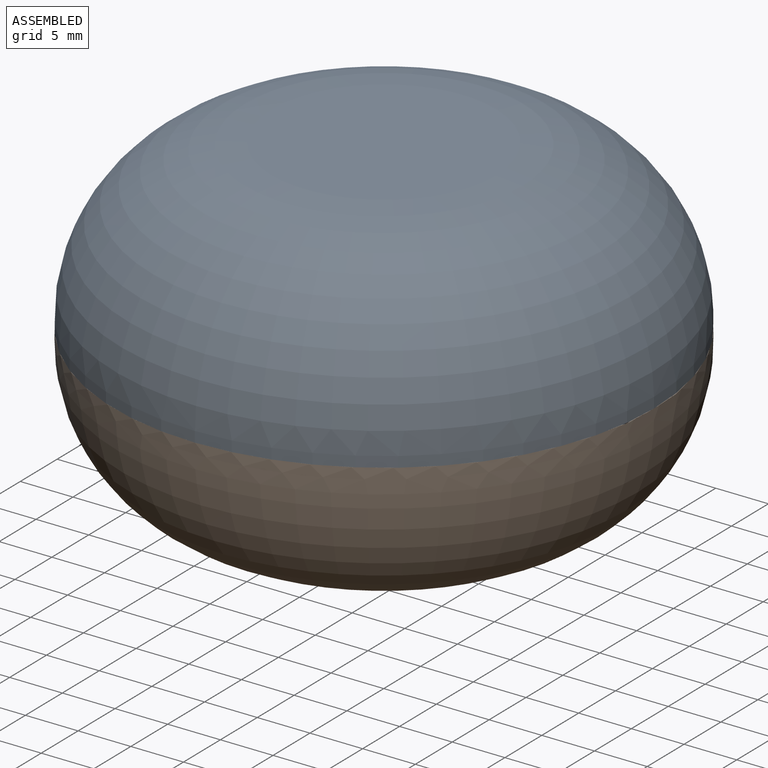
[diagram: assembled view]
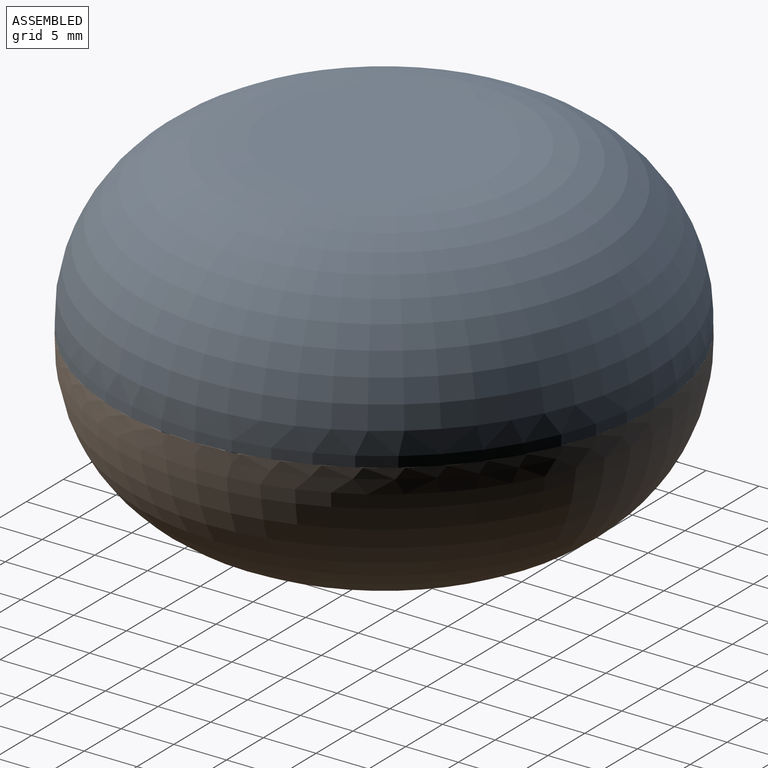
[diagram: assembled view, second angle]
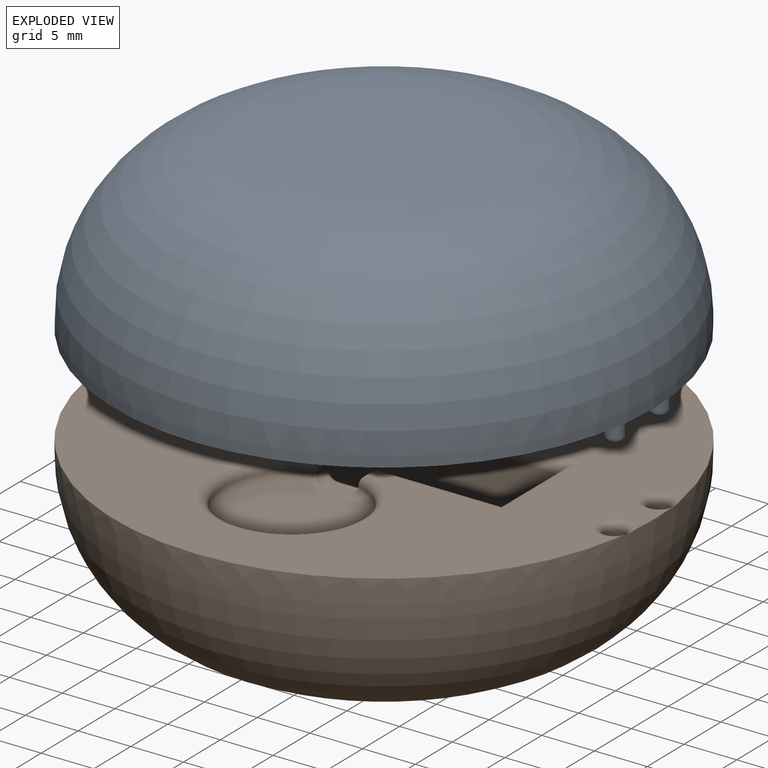
[diagram: exploded view]
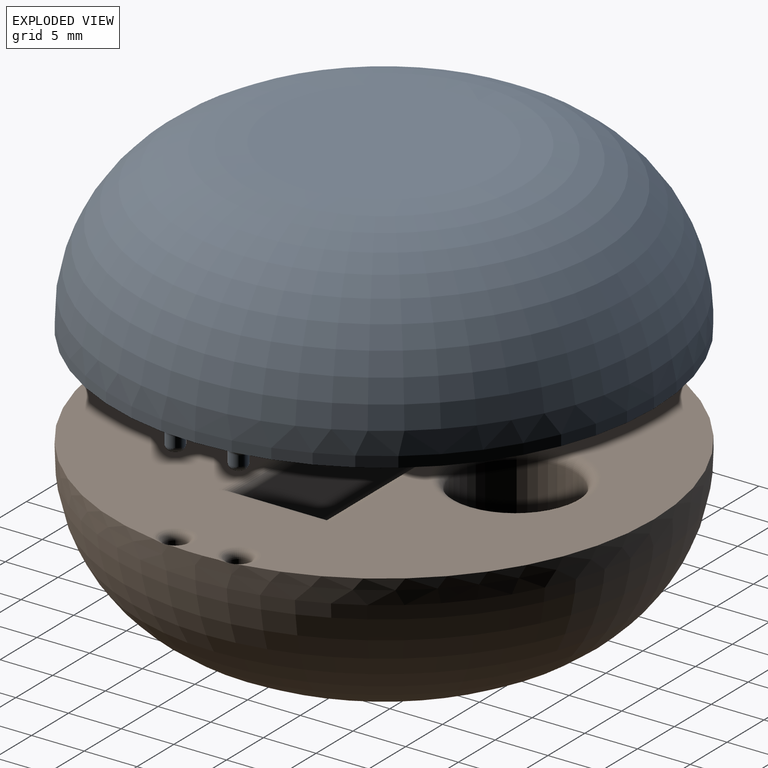
[diagram: exploded view, second angle]
ASSEMBLY  parts=2 mates=3
PART A: 340 faces, bbox 52x51.5x18.3 mm
  f0: plane 21.25x19.8mm, normal (0,0,-1), area 244.3mm2, adj f2,f3,f140,f143,f151,f152,f153,f154
  f1: plane 16.11x5.54mm, normal (0,1,0), area 74.7mm2, adj f2,f5,f13,f14
  f2: torus R=10.62mm, axis (0,0,1), area 362.2mm2, adj f0,f1,f13,f14,f139,f142
  f3: torus R=10.62mm, axis (0,0,1), area 362.2mm2, adj f0,f4,f11,f12,f141,f144
  f4: plane 16.11x5.54mm, normal (0,-1,0), area 74.7mm2, adj f3,f5,f11,f12
  f5: plane 51.25x51.25mm, normal (0,0,-1), area 1102.7mm2, adj f1,f4,f6,f9,f10,f11,f12,f13
  f6: cylinder r=25.62mm len=51.25mm, axis (0,0,-1), area 161mm2, adj f5,f8
  f7: plane 21.25x21.25mm, normal (0,0,1), area 354.7mm2, adj f8
  f8: torus R=10.62mm, axis (0,0,1), area 2986.7mm2, adj f6,f7
  f9: plane 43.93x12.9mm, normal (-1,0,0), area 492mm2, adj f5,f11,f13,f139,f140,f141
  f10: plane 43.93x12.9mm, normal (1,0,0), area 492mm2, adj f5,f12,f14,f142,f143,f144
  f11: plane 4.78x2.23mm, normal (-0.64,-0.77,0), area 9.3mm2, adj f3,f4,f5,f9,f141
  f12: plane 4.78x2.23mm, normal (0.64,-0.77,0), area 9.3mm2, adj f3,f4,f5,f10,f144
  f13: plane 4.78x2.23mm, normal (-0.64,0.77,0), area 9.3mm2, adj f1,f2,f5,f9,f139
  f14: plane 4.78x2.23mm, normal (0.64,0.77,0), area 9.3mm2, adj f1,f2,f5,f10,f142
  f15: plane 2.8x0.8mm, normal (0,-1,0), area 2.2mm2, adj f16,f26,f240,f338
  f16: plane 0.85x0.8mm, normal (-1,0,0), area 0.7mm2, adj f15,f17,f241,f339
  f17: plane 1.77x0.8mm, normal (0,1,0), area 1.4mm2, adj f16,f18,f239,f337
  f18: plane 1.26x0.8mm, normal (-1,0,0), area 1mm2, adj f17,f19,f237,f335
  f19: plane 1.65x0.8mm, normal (0,-1,0), area 1.3mm2, adj f18,f20,f235,f333
  f20: plane 0.85x0.8mm, normal (-1,0,0), area 0.7mm2, adj f19,f21,f233,f331
  f21: plane 1.65x0.8mm, normal (0,1,0), area 1.3mm2, adj f20,f22,f231,f329
  f22: plane 1.07x0.8mm, normal (-1,0,0), area 0.9mm2, adj f21,f23,f230,f328
  f23: plane 1.77x0.8mm, normal (0,-1,0), area 1.4mm2, adj f22,f24,f232,f330
  f24: plane 0.85x0.8mm, normal (-1,0,0), area 0.7mm2, adj f23,f25,f234,f332
  f25: plane 2.8x0.8mm, normal (0,1,0), area 2.2mm2, adj f24,f26,f236,f334
  f26: plane 4.87x0.8mm, normal (1,0,0), area 3.9mm2, adj f15,f25,f238,f336
  f27: plane 4.67x2.6mm, normal (0,0,-1), area 7.2mm2, adj f328,f329,f330,f331,f332,f333,f334,f335
  f28: plane 1.28x0.8mm, normal (-1,0,0), area 1mm2, adj f29,f52,f146,f265
  f29: plane 0.8x0.64mm, normal (0,-1,0), area 0.5mm2, adj f28,f30,f145,f266
  f30: extruded ~0.87x0.8mm, area 1mm2, adj f29,f31,f147,f264
  f31: extruded ~0.8x0.5mm, area 0.5mm2, adj f30,f32,f149,f262
  f32: extruded ~0.8x0.63mm, area 0.5mm2, adj f31,f52,f150,f261
  f33: plane 0.8x0.6mm, normal (0,1,0), area 0.5mm2, adj f34,f50,f168,f260
  f34: plane 1.09x0.8mm, normal (-1,0,0), area 0.9mm2, adj f33,f35,f166,f258
  f35: plane 0.8x0.55mm, normal (0,-1,0), area 0.4mm2, adj f34,f36,f164,f256
  f36: extruded ~0.8x0.65mm, area 0.5mm2, adj f35,f37,f162,f254
  f37: extruded ~0.8x0.4mm, area 0.4mm2, adj f36,f38,f163,f255
  f38: extruded ~0.8x0.43mm, area 0.4mm2, adj f37,f50,f165,f257
  f39: plane 1.53x0.8mm, normal (0,1,0), area 1.2mm2, adj f40,f51,f160,f252
  f40: plane 4.9x0.8mm, normal (1,0,0), area 3.9mm2, adj f39,f41,f161,f253
  f41: plane 1.83x0.8mm, normal (0,-1,0), area 1.5mm2, adj f40,f42,f159,f251
  f42: extruded ~1.32x0.8mm, area 1.1mm2, adj f41,f43,f157,f249
  f43: extruded ~1.05x0.8mm, area 1mm2, adj f42,f44,f155,f247
  f44: extruded ~0.8x0.76mm, area 0.6mm2, adj f43,f45,f153,f245
  f45: extruded ~0.8x0.67mm, area 0.6mm2, adj f44,f46,f151,f243
  f46: plane 0.9x0.07mm, normal (-1,0,0), area 0mm2, adj f45,f47,f151,f152,f242
  f47: extruded ~0.8x0.55mm, area 0.5mm2, adj f46,f48,f152,f244
  f48: extruded ~0.8x0.72mm, area 0.6mm2, adj f47,f49,f154,f246
  f49: extruded ~0.94x0.8mm, area 0.9mm2, adj f48,f51,f156,f248
  f50: extruded ~0.8x0.61mm, area 0.5mm2, adj f33,f38,f167,f259
  f51: extruded ~1.51x0.8mm, area 1.2mm2, adj f39,f49,f158,f250
  f52: plane 0.8x0.68mm, normal (0,1,0), area 0.5mm2, adj f28,f32,f148,f263
  f53: plane 4.7x3.44mm, normal (0,0,-1), area 10.5mm2, adj f242,f243,f244,f245,f246,f247,f248,f249
  f54: plane 1.2x0.89mm, normal (0,0,-1), area 1mm2, adj f162,f163,f164,f165,f166,f167,f168
  f55: extruded ~1.58x1.4mm, area 1.9mm2, adj f56,f66,f169,f277
  f56: extruded ~1.61x1.5mm, area 2mm2, adj f55,f57,f170,f278
  f57: plane 0.8x0.45mm, normal (0,1,0), area 0.4mm2, adj f56,f58,f172,f276
  f58: plane 3.19x0.8mm, normal (-1,0,0), area 2.6mm2, adj f57,f66,f173,f274
  f59: extruded ~1.85x0.8mm, area 1.6mm2, adj f60,f65,f179,f272
  f60: extruded ~1.77x0.8mm, area 1.6mm2, adj f59,f61,f180,f273
  f61: extruded ~1.87x0.8mm, area 1.6mm2, adj f60,f62,f178,f271
  f62: plane 1.54x0.8mm, normal (0,1,0), area 1.2mm2, adj f61,f63,f176,f269
  f63: plane 4.9x0.8mm, normal (1,0,0), area 3.9mm2, adj f62,f64,f174,f267
  f64: plane 1.39x0.8mm, normal (0,-1,0), area 1.1mm2, adj f63,f65,f175,f268
  f65: extruded ~1.99x0.8mm, area 1.7mm2, adj f59,f64,f177,f270
  f66: plane 0.8x0.55mm, normal (0,-1,0), area 0.4mm2, adj f55,f58,f171,f275
  f67: plane 4.7x3.87mm, normal (0,0,-1), area 9.7mm2, adj f267,f268,f269,f270,f271,f272,f273,f274
  f68: plane 3.62x0.8mm, normal (0,-1,0), area 2.9mm2, adj f69,f77,f225,f323
  f69: plane 0.85x0.8mm, normal (-1,0,0), area 0.7mm2, adj f68,f70,f223,f321
  f70: plane 2.39x0.8mm, normal (0,1,0), area 1.9mm2, adj f69,f71,f221,f319
  f71: plane 3.35x2.33mm, normal (-0.82,-0.57,0), area 3.3mm2, adj f70,f72,f220,f318
  f72: plane 0.8x0.67mm, normal (-1,0,0), area 0.5mm2, adj f71,f73,f222,f320
  f73: plane 3.5x0.8mm, normal (0,1,0), area 2.8mm2, adj f72,f74,f224,f322
  f74: plane 0.85x0.8mm, normal (1,0,0), area 0.7mm2, adj f73,f75,f226,f324
  f75: plane 2.27x0.8mm, normal (0,-1,0), area 1.8mm2, adj f74,f76,f228,f326
  f76: plane 3.35x2.33mm, normal (0.82,0.57,0), area 3.3mm2, adj f75,f77,f229,f327
  f77: plane 0.8x0.67mm, normal (1,0,0), area 0.5mm2, adj f68,f76,f227,f325
  f78: plane 4.67x3.42mm, normal (0,0,-1), area 7.2mm2, adj f318,f319,f320,f321,f322,f323,f324,f325
  f79: plane 1.03x0.8mm, normal (0,-1,0), area 0.8mm2, adj f80,f90,f218,f316
  f80: plane 4.87x0.8mm, normal (-1,0,0), area 3.9mm2, adj f79,f81,f219,f317
  f81: plane 1.03x0.8mm, normal (0,1,0), area 0.8mm2, adj f80,f82,f217,f315
  f82: plane 1.91x0.8mm, normal (1,0,0), area 1.5mm2, adj f81,f83,f215,f313
  f83: plane 1.93x0.8mm, normal (0,1,0), area 1.5mm2, adj f82,f84,f213,f311
  f84: plane 1.91x0.8mm, normal (-1,0,0), area 1.5mm2, adj f83,f85,f211,f309
  f85: plane 1.03x0.8mm, normal (0,1,0), area 0.8mm2, adj f84,f86,f209,f307
  f86: plane 4.87x0.8mm, normal (1,0,0), area 3.9mm2, adj f85,f87,f208,f306
  f87: plane 1.03x0.8mm, normal (0,-1,0), area 0.8mm2, adj f86,f88,f210,f308
  f88: plane 2.1x0.8mm, normal (-1,0,0), area 1.7mm2, adj f87,f89,f212,f310
  f89: plane 1.93x0.8mm, normal (0,-1,0), area 1.5mm2, adj f88,f90,f214,f312
  f90: plane 2.1x0.8mm, normal (1,0,0), area 1.7mm2, adj f79,f89,f216,f314
  f91: plane 4.67x3.79mm, normal (0,0,-1), area 9.2mm2, adj f306,f307,f308,f309,f310,f311,f312,f313
  f92: plane 3.15x0.8mm, normal (-1,0,0), area 2.5mm2, adj f93,f106,f206,f304
  f93: plane 1.03x0.8mm, normal (0,1,0), area 0.8mm2, adj f92,f94,f207,f305
  f94: plane 2.97x0.8mm, normal (1,0,0), area 2.4mm2, adj f93,f95,f205,f303
  f95: extruded ~0.83x0.8mm, area 0.7mm2, adj f94,f96,f203,f301
  f96: extruded ~0.8x0.73mm, area 0.6mm2, adj f95,f97,f201,f299
  f97: extruded ~0.8x0.75mm, area 0.7mm2, adj f96,f98,f199,f297
  f98: extruded ~0.83x0.8mm, area 0.7mm2, adj f97,f99,f197,f295
  f99: plane 2.98x0.8mm, normal (-1,0,0), area 2.4mm2, adj f98,f100,f195,f293
  f100: plane 1.03x0.8mm, normal (0,1,0), area 0.8mm2, adj f99,f101,f193,f291
  f101: plane 3.14x0.8mm, normal (1,0,0), area 2.5mm2, adj f100,f102,f194,f292
  f102: extruded ~1.32x0.8mm, area 1.2mm2, adj f101,f103,f196,f294
  f103: extruded ~1.46x0.8mm, area 1.3mm2, adj f102,f104,f198,f296
  f104: extruded ~1.08x0.8mm, area 0.9mm2, adj f103,f105,f200,f298
  f105: extruded ~0.8x0.7mm, area 0.8mm2, adj f104,f106,f202,f300
  f106: extruded ~0.95x0.8mm, area 0.8mm2, adj f92,f105,f204,f302
  f107: plane 4.73x3.8mm, normal (0,0,-1), area 8.5mm2, adj f291,f292,f293,f294,f295,f296,f297,f298
  f108: plane 1.04x0.8mm, normal (0,-1,0), area 0.8mm2, adj f109,f119,f191,f289
  f109: plane 4.9x0.8mm, normal (-1,0,0), area 3.9mm2, adj f108,f110,f192,f290
  f110: plane 1.04x0.8mm, normal (0,1,0), area 0.8mm2, adj f109,f111,f190,f288
  f111: plane 1.92x0.8mm, normal (1,0,0), area 1.5mm2, adj f110,f112,f188,f286
  f112: plane 1.94x0.8mm, normal (0,1,0), area 1.6mm2, adj f111,f113,f186,f284
  f113: plane 1.92x0.8mm, normal (-1,0,0), area 1.5mm2, adj f112,f114,f184,f282
  f114: plane 1.04x0.8mm, normal (0,1,0), area 0.8mm2, adj f113,f115,f182,f280
  f115: plane 4.9x0.8mm, normal (1,0,0), area 3.9mm2, adj f114,f116,f181,f279
  f116: plane 1.04x0.8mm, normal (0,-1,0), area 0.8mm2, adj f115,f117,f183,f281
  f117: plane 2.12x0.8mm, normal (-1,0,0), area 1.7mm2, adj f116,f118,f185,f283
  f118: plane 1.94x0.8mm, normal (0,-1,0), area 1.6mm2, adj f117,f119,f187,f285
  f119: plane 2.12x0.8mm, normal (1,0,0), area 1.7mm2, adj f108,f118,f189,f287
  f120: plane 4.7x3.82mm, normal (0,0,-1), area 9.3mm2, adj f279,f280,f281,f282,f283,f284,f285,f286
  f121: plane 1.32x1.08mm, normal (0,0,-1), area 1.3mm2, adj f145,f146,f147,f148,f149,f150
  f122: plane 2.99x1.75mm, normal (0,0,-1), area 4.6mm2, adj f169,f170,f171,f172,f173
  f123: cylinder r=0.85mm len=1.7mm, axis (0,0,1), area 5.3mm2, adj f132,f138
  f124: plane 0.7x0.7mm, normal (0,0,-1), area 0.4mm2, adj f138
  f125: cylinder r=0.85mm len=1.7mm, axis (0,0,1), area 5.3mm2, adj f136,f137
  f126: plane 0.7x0.7mm, normal (0,0,-1), area 0.4mm2, adj f137
  f127: cylinder r=0.85mm len=1.7mm, axis (0,0,1), area 5.3mm2, adj f134,f135
  f128: plane 0.7x0.7mm, normal (0,0,-1), area 0.4mm2, adj f135
  f129: cylinder r=0.85mm len=1.7mm, axis (0,0,1), area 5.3mm2, adj f131,f133
  f130: plane 0.7x0.7mm, normal (0,0,-1), area 0.4mm2, adj f133
  f131: torus R=1.35mm, axis (0,0,1), area 5.1mm2, adj f5,f129
  f132: torus R=1.35mm, axis (0,0,1), area 5.1mm2, adj f5,f123
  f133: torus R=0.35mm, axis (0,0,-1), area 3.3mm2, adj f129,f130
  f134: torus R=1.35mm, axis (0,0,1), area 5.1mm2, adj f5,f127
  f135: torus R=0.35mm, axis (0,0,-1), area 3.3mm2, adj f127,f128
  f136: torus R=1.35mm, axis (0,0,1), area 5.1mm2, adj f5,f125
  f137: torus R=0.35mm, axis (0,0,-1), area 3.3mm2, adj f125,f126
  f138: torus R=0.35mm, axis (0,0,-1), area 3.3mm2, adj f123,f124
  f139: bspline ~20.58x9.96mm, area 2.8mm2, adj f2,f9,f13,f140
  f140: cylinder r=0.1mm len=7.72mm, axis (0,1,0), area 1.2mm2, adj f0,f9,f139,f141
  f141: bspline ~20.58x9.96mm, area 2.8mm2, adj f3,f9,f11,f140
  f142: bspline ~20.58x9.96mm, area 2.8mm2, adj f2,f10,f14,f143
  f143: cylinder r=0.1mm len=7.72mm, axis (0,1,0), area 1.2mm2, adj f0,f10,f142,f144
  f144: bspline ~20.58x9.96mm, area 2.8mm2, adj f3,f10,f12,f143
  f145: cylinder r=0.1mm len=0.64mm, axis (-1,0,0), area 0.1mm2, adj f29,f121,f146,f147
  f146: cylinder r=0.1mm len=1.28mm, axis (0,1,0), area 0.2mm2, adj f28,f121,f145,f148
  f147: bspline ~0.95x0.92mm, area 0.2mm2, adj f30,f121,f145,f149
  f148: cylinder r=0.1mm len=0.68mm, axis (1,0,0), area 0.1mm2, adj f52,f121,f146,f150
  f149: bspline ~0.65x0.39mm, area 0.1mm2, adj f31,f121,f147,f150
  f150: bspline ~0.82x0.27mm, area 0.1mm2, adj f32,f121,f148,f149
  f151: bspline ~1x0.68mm, area 0.1mm2, adj f0,f45,f46,f152,f153
  f152: bspline ~0.75x0.56mm, area 0.1mm2, adj f0,f46,f47,f151,f154
  f153: bspline ~1x0.41mm, area 0.1mm2, adj f0,f44,f151,f155
  f154: bspline ~0.97x0.33mm, area 0.1mm2, adj f0,f48,f152,f156
  f155: bspline ~1.71x0.87mm, area 0.2mm2, adj f0,f43,f153,f157
  f156: bspline ~1.47x0.81mm, area 0.2mm2, adj f0,f49,f154,f158
  f157: bspline ~1.9x0.65mm, area 0.2mm2, adj f0,f42,f155,f159
  f158: bspline ~2.23x0.59mm, area 0.2mm2, adj f0,f51,f156,f160
  f159: cylinder r=0.1mm len=1.93mm, axis (-1,0,0), area 0.3mm2, adj f0,f41,f157,f161
  f160: cylinder r=0.1mm len=1.63mm, axis (1,0,0), area 0.2mm2, adj f0,f39,f158,f161
  f161: cylinder r=0.1mm len=5.1mm, axis (0,-1,0), area 0.8mm2, adj f0,f40,f159,f160
  f162: bspline ~0.76x0.25mm, area 0.1mm2, adj f36,f54,f163,f164
  f163: bspline ~0.52x0.28mm, area 0.1mm2, adj f37,f54,f162,f165
  f164: cylinder r=0.1mm len=0.55mm, axis (-1,0,0), area 0.1mm2, adj f35,f54,f162,f166
  f165: bspline ~0.53x0.35mm, area 0.1mm2, adj f38,f54,f163,f167
  f166: cylinder r=0.1mm len=1.09mm, axis (0,1,0), area 0.2mm2, adj f34,f54,f164,f168
  f167: bspline ~0.78x0.22mm, area 0.1mm2, adj f50,f54,f165,f168
  f168: cylinder r=0.1mm len=0.6mm, axis (1,0,0), area 0.1mm2, adj f33,f54,f166,f167
  f169: bspline ~2.22x2.04mm, area 0.4mm2, adj f55,f122,f170,f171
  f170: bspline ~2.28x2.17mm, area 0.4mm2, adj f56,f122,f169,f172
  f171: cylinder r=0.1mm len=0.55mm, axis (-1,0,0), area 0.1mm2, adj f66,f122,f169,f173
  f172: cylinder r=0.1mm len=0.45mm, axis (1,0,0), area 0.1mm2, adj f57,f122,f170,f173
  f173: cylinder r=0.1mm len=3.19mm, axis (0,1,0), area 0.5mm2, adj f58,f122,f171,f172
  f174: cylinder r=0.1mm len=5.1mm, axis (0,-1,0), area 0.8mm2, adj f0,f63,f175,f176
  f175: cylinder r=0.1mm len=1.49mm, axis (-1,0,0), area 0.2mm2, adj f0,f64,f174,f177
  f176: cylinder r=0.1mm len=1.64mm, axis (1,0,0), area 0.2mm2, adj f0,f62,f174,f178
  f177: bspline ~2.82x1.04mm, area 0.3mm2, adj f0,f65,f175,f179
  f178: bspline ~2.63x1.01mm, area 0.3mm2, adj f0,f61,f176,f180
  f179: bspline ~2.92x1.06mm, area 0.3mm2, adj f0,f59,f177,f180
  f180: bspline ~2.8x1.02mm, area 0.3mm2, adj f0,f60,f178,f179
  f181: cylinder r=0.1mm len=5.1mm, axis (0,-1,0), area 0.8mm2, adj f0,f115,f182,f183
  f182: cylinder r=0.1mm len=1.24mm, axis (1,0,0), area 0.2mm2, adj f0,f114,f181,f184
  f183: cylinder r=0.1mm len=1.24mm, axis (-1,0,0), area 0.2mm2, adj f0,f116,f181,f185
  f184: cylinder r=0.1mm len=2.02mm, axis (0,1,0), area 0.3mm2, adj f0,f113,f182,f186
  f185: cylinder r=0.1mm len=2.22mm, axis (0,1,0), area 0.3mm2, adj f0,f117,f183,f187
  f186: cylinder r=0.1mm len=1.94mm, axis (1,0,0), area 0.3mm2, adj f0,f112,f184,f188
  f187: cylinder r=0.1mm len=1.94mm, axis (-1,0,0), area 0.3mm2, adj f0,f118,f185,f189
  f188: cylinder r=0.1mm len=2.02mm, axis (0,-1,0), area 0.3mm2, adj f0,f111,f186,f190
  f189: cylinder r=0.1mm len=2.22mm, axis (0,-1,0), area 0.3mm2, adj f0,f119,f187,f191
  f190: cylinder r=0.1mm len=1.24mm, axis (1,0,0), area 0.2mm2, adj f0,f110,f188,f192
  f191: cylinder r=0.1mm len=1.24mm, axis (-1,0,0), area 0.2mm2, adj f0,f108,f189,f192
  f192: cylinder r=0.1mm len=5.1mm, axis (0,1,0), area 0.8mm2, adj f0,f109,f190,f191
  f193: cylinder r=0.1mm len=1.23mm, axis (1,0,0), area 0.2mm2, adj f0,f100,f194,f195
  f194: cylinder r=0.1mm len=3.24mm, axis (0,-1,0), area 0.5mm2, adj f0,f101,f193,f196
  f195: cylinder r=0.1mm len=3.08mm, axis (0,1,0), area 0.5mm2, adj f0,f99,f193,f197
  f196: bspline ~1.95x0.67mm, area 0.2mm2, adj f0,f102,f194,f198
  f197: bspline ~1.05x0.33mm, area 0.1mm2, adj f0,f98,f195,f199
  f198: bspline ~2.08x0.8mm, area 0.3mm2, adj f0,f103,f196,f200
  f199: bspline ~0.91x0.43mm, area 0.1mm2, adj f0,f97,f197,f201
  f200: bspline ~1.37x0.41mm, area 0.2mm2, adj f0,f104,f198,f202
  f201: bspline ~1.02x0.36mm, area 0.1mm2, adj f0,f96,f199,f203
  f202: bspline ~0.92x0.89mm, area 0.2mm2, adj f0,f105,f200,f204
  f203: bspline ~1.02x0.43mm, area 0.1mm2, adj f0,f95,f201,f205
  f204: bspline ~1.23x0.37mm, area 0.2mm2, adj f0,f106,f202,f206
  f205: cylinder r=0.1mm len=3.07mm, axis (0,-1,0), area 0.5mm2, adj f0,f94,f203,f207
  f206: cylinder r=0.1mm len=3.25mm, axis (0,1,0), area 0.5mm2, adj f0,f92,f204,f207
  f207: cylinder r=0.1mm len=1.23mm, axis (1,0,0), area 0.2mm2, adj f0,f93,f205,f206
  f208: cylinder r=0.1mm len=5.07mm, axis (0,-1,0), area 0.8mm2, adj f0,f86,f209,f210
  f209: cylinder r=0.1mm len=1.23mm, axis (1,0,0), area 0.2mm2, adj f0,f85,f208,f211
  f210: cylinder r=0.1mm len=1.23mm, axis (-1,0,0), area 0.2mm2, adj f0,f87,f208,f212
  f211: cylinder r=0.1mm len=2.01mm, axis (0,1,0), area 0.3mm2, adj f0,f84,f209,f213
  f212: cylinder r=0.1mm len=2.2mm, axis (0,1,0), area 0.3mm2, adj f0,f88,f210,f214
  f213: cylinder r=0.1mm len=1.93mm, axis (1,0,0), area 0.3mm2, adj f0,f83,f211,f215
  f214: cylinder r=0.1mm len=1.93mm, axis (-1,0,0), area 0.3mm2, adj f0,f89,f212,f216
  f215: cylinder r=0.1mm len=2.01mm, axis (0,-1,0), area 0.3mm2, adj f0,f82,f213,f217
  f216: cylinder r=0.1mm len=2.2mm, axis (0,-1,0), area 0.3mm2, adj f0,f90,f214,f218
  f217: cylinder r=0.1mm len=1.23mm, axis (1,0,0), area 0.2mm2, adj f0,f81,f215,f219
  f218: cylinder r=0.1mm len=1.23mm, axis (-1,0,0), area 0.2mm2, adj f0,f79,f216,f219
  f219: cylinder r=0.1mm len=5.07mm, axis (0,1,0), area 0.8mm2, adj f0,f80,f217,f218
  f220: cylinder r=0.1mm len=3.43mm, axis (-0.57,0.82,0), area 0.6mm2, adj f0,f71,f221,f222
  f221: cylinder r=0.1mm len=2.49mm, axis (1,0,0), area 0.4mm2, adj f0,f70,f220,f223
  f222: cylinder r=0.1mm len=0.8mm, axis (0,1,0), area 0.1mm2, adj f0,f72,f220,f224
  f223: cylinder r=0.1mm len=1.05mm, axis (0,1,0), area 0.1mm2, adj f0,f69,f221,f225
  f224: cylinder r=0.1mm len=3.7mm, axis (1,0,0), area 0.6mm2, adj f0,f73,f222,f226
  f225: cylinder r=0.1mm len=3.82mm, axis (-1,0,0), area 0.6mm2, adj f0,f68,f223,f227
  f226: cylinder r=0.1mm len=1.05mm, axis (0,-1,0), area 0.1mm2, adj f0,f74,f224,f228
  f227: cylinder r=0.1mm len=0.8mm, axis (0,-1,0), area 0.1mm2, adj f0,f77,f225,f229
  f228: cylinder r=0.1mm len=2.37mm, axis (-1,0,0), area 0.3mm2, adj f0,f75,f226,f229
  f229: cylinder r=0.1mm len=3.43mm, axis (0.57,-0.82,0), area 0.6mm2, adj f0,f76,f227,f228
  f230: cylinder r=0.1mm len=1.07mm, axis (0,1,0), area 0.2mm2, adj f0,f22,f231,f232
  f231: cylinder r=0.1mm len=1.75mm, axis (1,0,0), area 0.3mm2, adj f0,f21,f230,f233
  f232: cylinder r=0.1mm len=1.87mm, axis (-1,0,0), area 0.3mm2, adj f0,f23,f230,f234
  f233: cylinder r=0.1mm len=1.05mm, axis (0,1,0), area 0.1mm2, adj f0,f20,f231,f235
  f234: cylinder r=0.1mm len=1.05mm, axis (0,1,0), area 0.1mm2, adj f0,f24,f232,f236
  f235: cylinder r=0.1mm len=1.75mm, axis (-1,0,0), area 0.3mm2, adj f0,f19,f233,f237
  f236: cylinder r=0.1mm len=3mm, axis (1,0,0), area 0.5mm2, adj f0,f25,f234,f238
  f237: cylinder r=0.1mm len=1.26mm, axis (0,1,0), area 0.2mm2, adj f0,f18,f235,f239
  f238: cylinder r=0.1mm len=5.07mm, axis (0,-1,0), area 0.8mm2, adj f0,f26,f236,f240
  f239: cylinder r=0.1mm len=1.87mm, axis (1,0,0), area 0.3mm2, adj f0,f17,f237,f241
  f240: cylinder r=0.1mm len=3mm, axis (-1,0,0), area 0.5mm2, adj f0,f15,f238,f241
  f241: cylinder r=0.1mm len=1.05mm, axis (0,1,0), area 0.1mm2, adj f0,f16,f239,f240
  f242: cylinder r=0.1mm len=0.2mm, axis (0,-1,0), area 0mm2, adj f46,f53,f243,f244
  f243: bspline ~0.97x0.65mm, area 0.1mm2, adj f45,f53,f242,f245
  f244: bspline ~1.16x0.66mm, area 0.1mm2, adj f47,f53,f242,f246
  f245: bspline ~0.97x0.31mm, area 0.1mm2, adj f44,f53,f243,f247
  f246: bspline ~0.89x0.38mm, area 0.1mm2, adj f48,f53,f244,f248
  f247: bspline ~1.63x0.83mm, area 0.2mm2, adj f43,f53,f245,f249
  f248: bspline ~1.27x0.59mm, area 0.2mm2, adj f49,f53,f246,f250
  f249: bspline ~1.84x0.63mm, area 0.2mm2, adj f42,f53,f247,f251
  f250: bspline ~2.18x0.57mm, area 0.2mm2, adj f51,f53,f248,f252
  f251: cylinder r=0.1mm len=1.83mm, axis (1,0,0), area 0.3mm2, adj f41,f53,f249,f253
  f252: cylinder r=0.1mm len=1.53mm, axis (-1,0,0), area 0.2mm2, adj f39,f53,f250,f253
  f253: cylinder r=0.1mm len=4.9mm, axis (0,1,0), area 0.8mm2, adj f40,f53,f251,f252
  f254: bspline ~0.88x0.23mm, area 0.1mm2, adj f36,f53,f255,f256
  f255: bspline ~0.57x0.39mm, area 0.1mm2, adj f37,f53,f254,f257
  f256: cylinder r=0.1mm len=0.65mm, axis (1,0,0), area 0.1mm2, adj f35,f53,f254,f258
  f257: bspline ~0.65x0.31mm, area 0.1mm2, adj f38,f53,f255,f259
  f258: cylinder r=0.1mm len=1.29mm, axis (0,-1,0), area 0.2mm2, adj f34,f53,f256,f260
  f259: bspline ~0.77x0.27mm, area 0.1mm2, adj f50,f53,f257,f260
  f260: cylinder r=0.1mm len=0.7mm, axis (-1,0,0), area 0.1mm2, adj f33,f53,f258,f259
  f261: bspline ~0.85x0.36mm, area 0.1mm2, adj f32,f53,f262,f263
  f262: bspline ~0.77x0.33mm, area 0.1mm2, adj f31,f53,f261,f264
  f263: cylinder r=0.1mm len=0.78mm, axis (-1,0,0), area 0.1mm2, adj f52,f53,f261,f265
  f264: bspline ~1.28x0.79mm, area 0.2mm2, adj f30,f53,f262,f266
  f265: cylinder r=0.1mm len=1.48mm, axis (0,-1,0), area 0.2mm2, adj f28,f53,f263,f266
  f266: cylinder r=0.1mm len=0.74mm, axis (1,0,0), area 0.1mm2, adj f29,f53,f264,f265
  f267: cylinder r=0.1mm len=4.9mm, axis (0,1,0), area 0.8mm2, adj f63,f67,f268,f269
  f268: cylinder r=0.1mm len=1.39mm, axis (1,0,0), area 0.2mm2, adj f64,f67,f267,f270
  f269: cylinder r=0.1mm len=1.54mm, axis (-1,0,0), area 0.2mm2, adj f62,f67,f267,f271
  f270: bspline ~2.75x1.02mm, area 0.3mm2, adj f65,f67,f268,f272
  f271: bspline ~2.26x0.98mm, area 0.3mm2, adj f61,f67,f269,f273
  f272: bspline ~2.29x1.03mm, area 0.3mm2, adj f59,f67,f270,f273
  f273: bspline ~2.73x0.99mm, area 0.3mm2, adj f60,f67,f271,f272
  f274: cylinder r=0.1mm len=3.39mm, axis (0,-1,0), area 0.5mm2, adj f58,f67,f275,f276
  f275: cylinder r=0.1mm len=0.65mm, axis (1,0,0), area 0.1mm2, adj f66,f67,f274,f277
  f276: cylinder r=0.1mm len=0.55mm, axis (-1,0,0), area 0.1mm2, adj f57,f67,f274,f278
  f277: bspline ~2.32x2.14mm, area 0.4mm2, adj f55,f67,f275,f278
  f278: bspline ~2.38x2.27mm, area 0.4mm2, adj f56,f67,f276,f277
  f279: cylinder r=0.1mm len=4.9mm, axis (0,1,0), area 0.8mm2, adj f115,f120,f280,f281
  f280: cylinder r=0.1mm len=1.04mm, axis (-1,0,0), area 0.1mm2, adj f114,f120,f279,f282
  f281: cylinder r=0.1mm len=1.04mm, axis (1,0,0), area 0.1mm2, adj f116,f120,f279,f283
  f282: cylinder r=0.1mm len=2.02mm, axis (0,-1,0), area 0.3mm2, adj f113,f120,f280,f284
  f283: cylinder r=0.1mm len=2.22mm, axis (0,-1,0), area 0.3mm2, adj f117,f120,f281,f285
  f284: cylinder r=0.1mm len=2.14mm, axis (-1,0,0), area 0.3mm2, adj f112,f120,f282,f286
  f285: cylinder r=0.1mm len=2.14mm, axis (1,0,0), area 0.3mm2, adj f118,f120,f283,f287
  f286: cylinder r=0.1mm len=2.02mm, axis (0,1,0), area 0.3mm2, adj f111,f120,f284,f288
  f287: cylinder r=0.1mm len=2.22mm, axis (0,1,0), area 0.3mm2, adj f119,f120,f285,f289
  f288: cylinder r=0.1mm len=1.04mm, axis (-1,0,0), area 0.1mm2, adj f110,f120,f286,f290
  f289: cylinder r=0.1mm len=1.04mm, axis (1,0,0), area 0.1mm2, adj f108,f120,f287,f290
  f290: cylinder r=0.1mm len=4.9mm, axis (0,-1,0), area 0.8mm2, adj f109,f120,f288,f289
  f291: cylinder r=0.1mm len=1.03mm, axis (-1,0,0), area 0.1mm2, adj f100,f107,f292,f293
  f292: cylinder r=0.1mm len=3.14mm, axis (0,1,0), area 0.5mm2, adj f101,f107,f291,f294
  f293: cylinder r=0.1mm len=2.98mm, axis (0,-1,0), area 0.5mm2, adj f99,f107,f291,f295
  f294: bspline ~2x0.78mm, area 0.2mm2, adj f102,f107,f292,f296
  f295: bspline ~1.08x0.45mm, area 0.1mm2, adj f98,f107,f293,f297
  f296: bspline ~2.01x0.77mm, area 0.2mm2, adj f103,f107,f294,f298
  f297: bspline ~1.18x0.47mm, area 0.1mm2, adj f97,f107,f295,f299
  f298: bspline ~1.34x0.33mm, area 0.2mm2, adj f104,f107,f296,f300
  f299: bspline ~0.96x0.46mm, area 0.1mm2, adj f96,f107,f297,f301
  f300: bspline ~0.93x0.79mm, area 0.1mm2, adj f105,f107,f298,f302
  f301: bspline ~1.12x0.36mm, area 0.1mm2, adj f95,f107,f299,f303
  f302: bspline ~1.16x0.42mm, area 0.2mm2, adj f106,f107,f300,f304
  f303: cylinder r=0.1mm len=2.97mm, axis (0,1,0), area 0.5mm2, adj f94,f107,f301,f305
  f304: cylinder r=0.1mm len=3.15mm, axis (0,-1,0), area 0.5mm2, adj f92,f107,f302,f305
  f305: cylinder r=0.1mm len=1.03mm, axis (-1,0,0), area 0.1mm2, adj f93,f107,f303,f304
  f306: cylinder r=0.1mm len=4.87mm, axis (0,1,0), area 0.7mm2, adj f86,f91,f307,f308
  f307: cylinder r=0.1mm len=1.03mm, axis (-1,0,0), area 0.1mm2, adj f85,f91,f306,f309
  f308: cylinder r=0.1mm len=1.03mm, axis (1,0,0), area 0.1mm2, adj f87,f91,f306,f310
  f309: cylinder r=0.1mm len=2.01mm, axis (0,-1,0), area 0.3mm2, adj f84,f91,f307,f311
  f310: cylinder r=0.1mm len=2.2mm, axis (0,-1,0), area 0.3mm2, adj f88,f91,f308,f312
  f311: cylinder r=0.1mm len=2.13mm, axis (-1,0,0), area 0.3mm2, adj f83,f91,f309,f313
  f312: cylinder r=0.1mm len=2.13mm, axis (1,0,0), area 0.3mm2, adj f89,f91,f310,f314
  f313: cylinder r=0.1mm len=2.01mm, axis (0,1,0), area 0.3mm2, adj f82,f91,f311,f315
  f314: cylinder r=0.1mm len=2.2mm, axis (0,1,0), area 0.3mm2, adj f90,f91,f312,f316
  f315: cylinder r=0.1mm len=1.03mm, axis (-1,0,0), area 0.1mm2, adj f81,f91,f313,f317
  f316: cylinder r=0.1mm len=1.03mm, axis (1,0,0), area 0.1mm2, adj f79,f91,f314,f317
  f317: cylinder r=0.1mm len=4.87mm, axis (0,-1,0), area 0.7mm2, adj f80,f91,f315,f316
  f318: cylinder r=0.1mm len=3.56mm, axis (0.57,-0.82,0), area 0.7mm2, adj f71,f78,f319,f320
  f319: cylinder r=0.1mm len=2.59mm, axis (-1,0,0), area 0.4mm2, adj f70,f78,f318,f321
  f320: cylinder r=0.1mm len=0.67mm, axis (0,-1,0), area 0.1mm2, adj f72,f78,f318,f322
  f321: cylinder r=0.1mm len=0.85mm, axis (0,-1,0), area 0.1mm2, adj f69,f78,f319,f323
  f322: cylinder r=0.1mm len=3.5mm, axis (-1,0,0), area 0.5mm2, adj f73,f78,f320,f324
  f323: cylinder r=0.1mm len=3.62mm, axis (1,0,0), area 0.6mm2, adj f68,f78,f321,f325
  f324: cylinder r=0.1mm len=0.85mm, axis (0,1,0), area 0.1mm2, adj f74,f78,f322,f326
  f325: cylinder r=0.1mm len=0.67mm, axis (0,1,0), area 0.1mm2, adj f77,f78,f323,f327
  f326: cylinder r=0.1mm len=2.46mm, axis (1,0,0), area 0.4mm2, adj f75,f78,f324,f327
  f327: cylinder r=0.1mm len=3.56mm, axis (-0.57,0.82,0), area 0.7mm2, adj f76,f78,f325,f326
  f328: cylinder r=0.1mm len=1.27mm, axis (0,-1,0), area 0.2mm2, adj f22,f27,f329,f330
  f329: cylinder r=0.1mm len=1.75mm, axis (-1,0,0), area 0.3mm2, adj f21,f27,f328,f331
  f330: cylinder r=0.1mm len=1.87mm, axis (1,0,0), area 0.3mm2, adj f23,f27,f328,f332
  f331: cylinder r=0.1mm len=0.85mm, axis (0,-1,0), area 0.1mm2, adj f20,f27,f329,f333
  f332: cylinder r=0.1mm len=0.85mm, axis (0,-1,0), area 0.1mm2, adj f24,f27,f330,f334
  f333: cylinder r=0.1mm len=1.75mm, axis (1,0,0), area 0.3mm2, adj f19,f27,f331,f335
  f334: cylinder r=0.1mm len=2.8mm, axis (-1,0,0), area 0.4mm2, adj f25,f27,f332,f336
  f335: cylinder r=0.1mm len=1.46mm, axis (0,-1,0), area 0.2mm2, adj f18,f27,f333,f337
  f336: cylinder r=0.1mm len=4.87mm, axis (0,1,0), area 0.7mm2, adj f26,f27,f334,f338
  f337: cylinder r=0.1mm len=1.87mm, axis (-1,0,0), area 0.3mm2, adj f17,f27,f335,f339
  f338: cylinder r=0.1mm len=2.8mm, axis (1,0,0), area 0.4mm2, adj f15,f27,f336,f339
  f339: cylinder r=0.1mm len=0.85mm, axis (0,-1,0), area 0.1mm2, adj f16,f27,f337,f338
PART B: 50 faces, bbox 52.9x51.3x16 mm
  f0: plane 51.25x51.25mm, normal (0,0,1), area 1396.8mm2, adj f2,f12,f13,f16,f17,f20,f21,f24
  f1: plane 28x6mm, normal (0,1,0), area 157.7mm2, adj f7,f8,f12,f19,f23,f24,f26,f29
  f2: cylinder r=25.62mm len=51.25mm, axis (0,0,-1), area 160.9mm2, adj f0,f11,f42,f44,f46,f48
  f3: plane 21.25x21.25mm, normal (0,0,-1), area 354.7mm2, adj f11
  f4: cylinder r=5.62mm len=11.25mm, axis (0,0,1), area 353.4mm2, adj f32,f33
  f5: plane 9.25x9.25mm, normal (0,0,1), area 67.2mm2, adj f33
  f6: plane 12.75x11mm, normal (0,0,1), area 98.6mm2, adj f15,f18,f22,f23
  f7: plane 8.5x6mm, normal (1,0,0), area 51mm2, adj f1,f9,f13,f28
  f8: plane 8.5x6mm, normal (-1,0,0), area 51mm2, adj f1,f9,f20,f31
  f9: plane 28x6mm, normal (0,-1,0), area 168mm2, adj f7,f8,f16,f30
  f10: plane 26x6.5mm, normal (0,0,1), area 169mm2, adj f28,f29,f30,f31
  f11: torus R=10.62mm, axis (0,0,1), area 2986.7mm2, adj f2,f3
  f12: cylinder r=1mm len=12mm, axis (-1,0,0), area 17.8mm2, adj f0,f1,f13,f14
  f13: cylinder r=1mm len=10.5mm, axis (0,1,0), area 14.5mm2, adj f0,f7,f12,f16
  f14: sphere r=1mm, area 1.6mm2, adj f12,f17,f19
  f15: cylinder r=1mm len=1.84mm, axis (0,1,0), area 2.1mm2, adj f6,f17,f18,f19
  f16: cylinder r=1mm len=30mm, axis (1,0,0), area 45.1mm2, adj f0,f9,f13,f20
  f17: cylinder r=1mm len=1.07mm, axis (0,1,0), area 1.3mm2, adj f0,f14,f15,f21
  f18: torus R=5.5mm, axis (0,0,1), area 55.4mm2, adj f6,f15,f21,f22
  f19: torus R=2mm, axis (0,-1,0), area 3.4mm2, adj f1,f14,f15,f23
  f20: cylinder r=1mm len=10.5mm, axis (0,-1,0), area 14.5mm2, adj f0,f8,f16,f24
  f21: torus R=7.5mm, axis (0,0,1), area 60.2mm2, adj f0,f17,f18,f25
  f22: cylinder r=1mm len=1.84mm, axis (0,-1,0), area 2.1mm2, adj f6,f18,f25,f26
  f23: cylinder r=1mm len=2mm, axis (1,0,0), area 3.1mm2, adj f1,f6,f19,f26
  f24: cylinder r=1mm len=12mm, axis (-1,0,0), area 17.8mm2, adj f0,f1,f20,f27
  f25: cylinder r=1mm len=1.07mm, axis (0,-1,0), area 1.3mm2, adj f0,f21,f22,f27
  f26: torus R=2mm, axis (0,-1,0), area 3.4mm2, adj f1,f22,f23,f27
  f27: sphere r=1mm, area 1.6mm2, adj f24,f25,f26
  f28: cylinder r=1mm len=8.5mm, axis (0,-1,0), area 12.2mm2, adj f7,f10,f29,f30
  f29: cylinder r=1mm len=28mm, axis (1,0,0), area 42.8mm2, adj f1,f10,f28,f31
  f30: cylinder r=1mm len=28mm, axis (-1,0,0), area 42.8mm2, adj f9,f10,f28,f31
  f31: cylinder r=1mm len=8.5mm, axis (0,1,0), area 12.2mm2, adj f8,f10,f29,f30
  f32: torus R=6.62mm, axis (0,0,1), area 59.1mm2, adj f0,f4
  f33: torus R=4.62mm, axis (0,0,1), area 51.9mm2, adj f4,f5
  f34: cylinder r=1mm len=2mm, axis (0,0,1), area 9.4mm2, adj f48,f49
  f35: plane 0.5x0.5mm, normal (0,0,1), area 0.2mm2, adj f49
  f36: cylinder r=1mm len=2mm, axis (0,0,1), area 9.4mm2, adj f46,f47
  f37: plane 0.5x0.5mm, normal (0,0,1), area 0.2mm2, adj f47
  f38: cylinder r=1mm len=2mm, axis (0,0,1), area 9.4mm2, adj f44,f45
  f39: plane 0.5x0.5mm, normal (0,0,1), area 0.2mm2, adj f45
  f40: cylinder r=1mm len=2mm, axis (0,0,1), area 9.4mm2, adj f42,f43
  f41: plane 0.5x0.5mm, normal (0,0,1), area 0.2mm2, adj f43
  f42: torus R=1.75mm, axis (0,0,1), area 9mm2, adj f0,f2,f40
  f43: torus R=0.25mm, axis (0,0,1), area 5.4mm2, adj f40,f41
  f44: torus R=1.75mm, axis (0,0,1), area 9mm2, adj f0,f2,f38
  f45: torus R=0.25mm, axis (0,0,1), area 5.4mm2, adj f38,f39
  f46: torus R=1.75mm, axis (0,0,1), area 9mm2, adj f0,f2,f36
  f47: torus R=0.25mm, axis (0,0,1), area 5.4mm2, adj f36,f37
  f48: torus R=1.75mm, axis (0,0,1), area 9mm2, adj f0,f2,f34
  f49: torus R=0.25mm, axis (0,0,1), area 5.4mm2, adj f34,f35
PLACE A rot(axis=(0,0,-1),180deg) t=(-15.12,-2.64,17.04)mm
PLACE B t=(-15.12,-2.64,1.04)mm fixed
MATE planar A.f2 <-> B.f0  axis (0,0,-1) through (-15.12,-2.64,17.04)mm
MATE cylindrical A.f129 <-> B.f36  axis (0,0,-1) through (-39.12,-5.64,15.04)mm
MATE cylindrical B.f40 <-> A.f123  axis (0,0,1) through (8.88,0.36,14.04)mm
